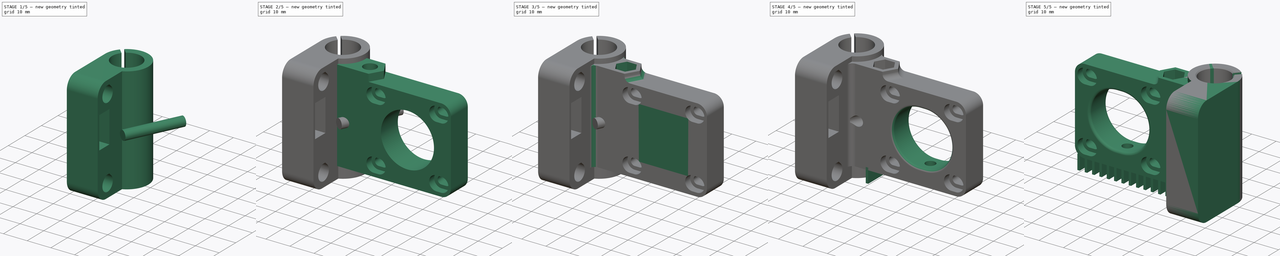
[diagram: build sequence overview — one tinted view per stage of 5, left to right]
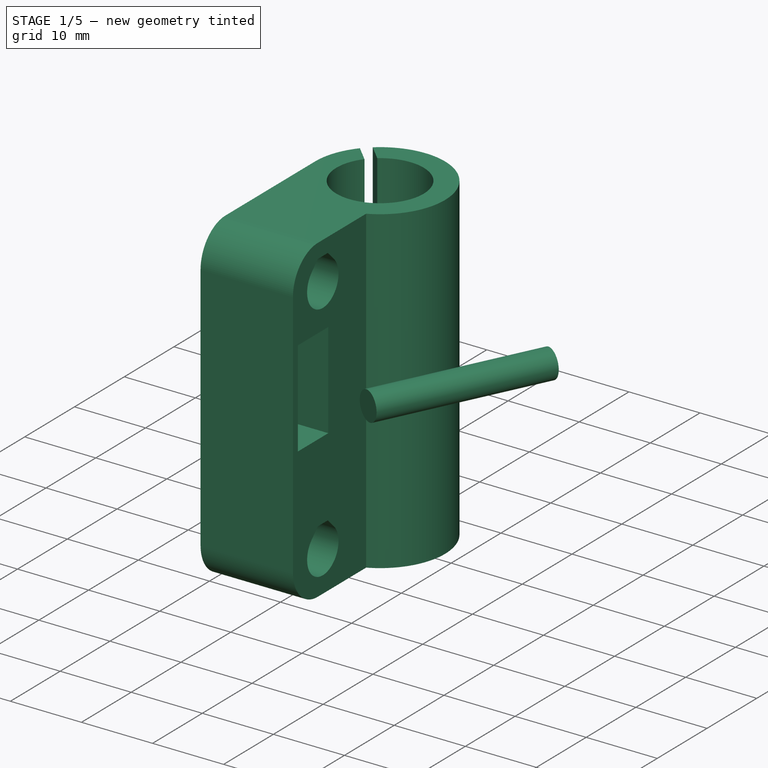
[diagram: stage 1 of 5 — iso view after this stage's code; geometry added in this stage tinted green]
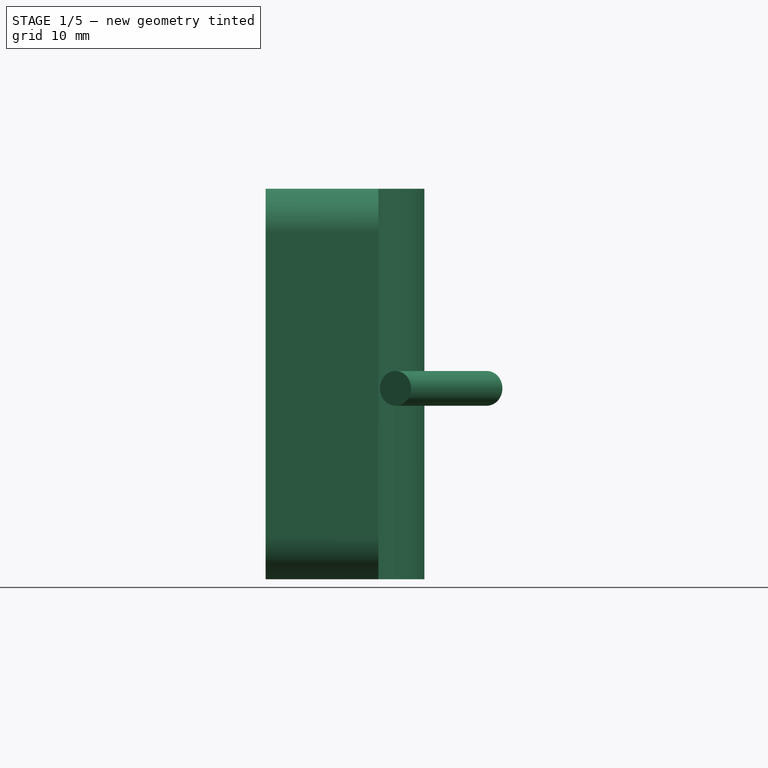
[diagram: stage 1 of 5 — front view after this stage's code; geometry added in this stage tinted green]
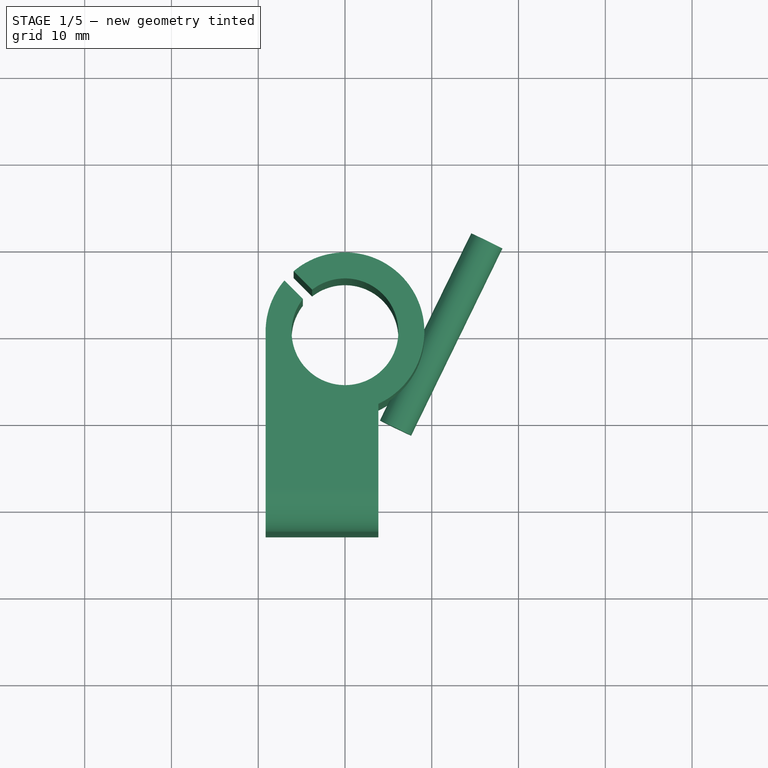
[diagram: stage 1 of 5 — top view after this stage's code; geometry added in this stage tinted green]
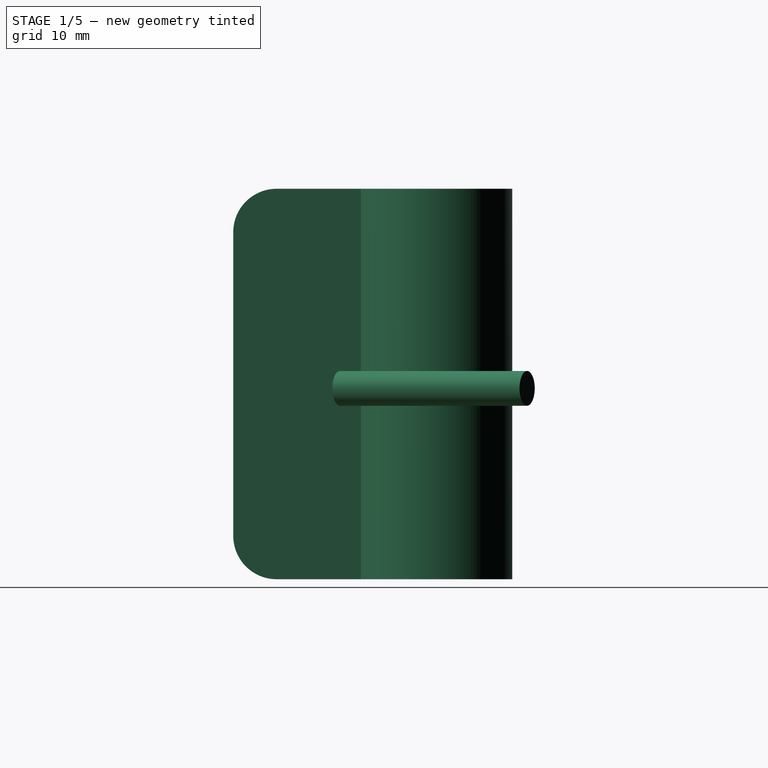
[diagram: stage 1 of 5 — right view after this stage's code; geometry added in this stage tinted green]
FCSTD DOCUMENT  (FreeCAD 0.16R6707 (Git))
Label: CarroMotorV2
License: CreativeCommons Attribution-ShareAlike
LicenseURL: http://creativecommons.org/licenses/by-sa/4.0/
objects: Sketcher::SketchObject×16, PartDesign::Pocket×11, PartDesign::Fillet×7, PartDesign::Pad×5, PartDesign::Chamfer×3, Part::Cylinder×2, Part::Cut×2, Part::MultiFuse×2, Part::Box×1, Part::FeaturePython×1, Part::Mirroring×1
note: 67 computed .brp shape members not serialized (recipe doc carries the construction recipe); baked Part::Feature solids carry a one-line shape summary decoded from their .brp

FEATURE [Sketcher::SketchObject] Sketch
  sketch-geometry (5):
    g0: LineSegment StartX=3.85 StartY=-8.3006 StartZ=0 EndX=3.85 EndY=-23 EndZ=0
    g1: LineSegment StartX=3.85 StartY=-23 StartZ=0 EndX=-9.15 EndY=-23 EndZ=0
    g2: LineSegment StartX=-9.15 StartY=-23 StartZ=0 EndX=-9.15 EndY=0 EndZ=0
    g3: ArcOfCircle CenterX=0 CenterY=0 CenterZ=0 NormalX=0 NormalY=0 NormalZ=1 Radius=9.15 StartAngle=5.14668 EndAngle=9.42478
    g4: Circle CenterX=0 CenterY=0 CenterZ=0 NormalX=0 NormalY=0 NormalZ=1 Radius=6.15
  constraints (14):
    c: Coincident(g0,g1)
    c: Coincident(g1,g2)
    c: Horizontal(g1)
    c: Vertical(g0)
    c: Vertical(g2)
    c: Coincident(g3,g-1)
    c: Coincident(g3,g2)
    c: Coincident(g3,g0)
    c: Radius(g3) = 9.15
    c: PointOnObject(g2,g-1)
    c: DistanceX(g1) = -13
    c: DistanceY(g2) = 23
    c: Coincident(g4,g-1)
    c: Radius(g4) = 6.15
FEATURE [PartDesign::Pad] Pad
  Length = 45
  Length2 = 100
  Sketch = -> Sketch
  Type = 0
FEATURE [Sketcher::SketchObject] Sketch001  label="SketchTensorRodamiento"
  Placement = pos=(0,0,45) rot=(0,0,1;0rad)
  Support = -> Pad [Face7]
  sketch-geometry (6):
    g0: LineSegment StartX=-8.2685 StartY=7.20784 StartZ=0 EndX=-4.02586 EndY=2.9652 EndZ=0
    g1: LineSegment StartX=-7.20784 StartY=8.2685 StartZ=0 EndX=-2.9652 EndY=4.02586 EndZ=0
    g2: LineSegment StartX=-8.2685 StartY=7.20784 StartZ=0 EndX=-7.20784 EndY=8.2685 EndZ=0
    g3: LineSegment StartX=-4.02586 StartY=2.9652 StartZ=0 EndX=-2.9652 EndY=4.02586 EndZ=0
    g4: LineSegment [constr] StartX=-4.02586 StartY=2.9652 StartZ=0 EndX=0 EndY=0 EndZ=0
    g5: LineSegment [constr] StartX=-2.9652 StartY=4.02586 StartZ=0 EndX=0 EndY=0 EndZ=0
  constraints (16):
    c: Coincident(g2,g0)
    c: Coincident(g2,g1)
    c: Coincident(g3,g0)
    c: Coincident(g3,g1)
    c: Parallel(g0,g1)
    c: Parallel(g2,g3)
    c: Perpendicular(g2,g0)
    c: Distance(g2) = 1.5
    c: Coincident(g4,g0)
    c: Coincident(g4,g-1)
    c: Coincident(g5,g1)
    c: Coincident(g5,g-1)
    c: Equal(g4,g5)
    c: Distance(g4) = 5
    c: Distance(g1) = 6
    c: Angle(g-1,g0) = 2.35619
FEATURE [PartDesign::Pocket] Pocket  label="VaciadoTensorRodamiento"
  Length = 5
  Sketch = -> Sketch001
  Type = 1
FEATURE [Sketcher::SketchObject] Sketch002  label="SketchBarraBaja"
  Placement = pos=(3.85,0,0) rot=(0.57735,0.57735,0.57735;2.0944rad)
  Support = -> Pocket [Face1]
  sketch-geometry (4):
    g0: ArcOfCircle CenterX=-17 CenterY=5.5 CenterZ=0 NormalX=0 NormalY=0 NormalZ=1 Radius=3.15 StartAngle=2.35619 EndAngle=7.06858
    g1: LineSegment StartX=-18 StartY=8.95477 StartZ=0 EndX=-16 EndY=8.95477 EndZ=0
    g2: LineSegment StartX=-19.2274 StartY=7.72739 StartZ=0 EndX=-18 EndY=8.95477 EndZ=0
    g3: LineSegment StartX=-14.7726 StartY=7.72738 StartZ=0 EndX=-16 EndY=8.95477 EndZ=0
  constraints (13):
    c: Horizontal(g1)
    c: Coincident(g2,g0)
    c: Coincident(g2,g1)
    c: Coincident(g3,g0)
    c: Coincident(g3,g1)
    c: Radius(g0) = 3.15
    c: Tangent(g0,g2)
    c: Tangent(g0,g3)
    c: DistanceX(g1) = 2
    c: Angle(g2,g3) = 1.5708
    c: Equal(g2,g3)
    c: DistanceY(g-1,g0) = 5.5
    c: DistanceX(g-1,g0) = -17
FEATURE [PartDesign::Pocket] Pocket001  label="VaciadoBarraBaja"
  Length = 11
  Sketch = -> Sketch002
  Type = 0
FEATURE [Sketcher::SketchObject] Sketch003  label="SketchBarraAlta"
  ExternalGeometry = -> [Pocket001]
  Placement = pos=(3.85,0,0) rot=(0.57735,0.57735,0.57735;2.0944rad)
  Support = -> Pocket001 [Face1]
  sketch-geometry (4):
    g0: ArcOfCircle CenterX=-17 CenterY=39.5 CenterZ=0 NormalX=0 NormalY=0 NormalZ=1 Radius=3.15 StartAngle=2.3562 EndAngle=7.06858
    g1: LineSegment StartX=-19.2274 StartY=41.7274 StartZ=0 EndX=-18 EndY=42.9548 EndZ=0
    g2: LineSegment StartX=-18 StartY=42.9548 StartZ=0 EndX=-16 EndY=42.9548 EndZ=0
    g3: LineSegment StartX=-16 StartY=42.9548 StartZ=0 EndX=-14.7726 EndY=41.7274 EndZ=0
  constraints (12):
    c: Tangent(g0,g1) = 1.5708
    c: Coincident(g1,g2)
    c: Horizontal(g2)
    c: Coincident(g2,g3)
    c: Coincident(g3,g0)
    c: Tangent(g0,g3)
    c: Equal(g1,g3)
    c: DistanceX(g2) = 2
    c: Radius(g0) = 3.15
    c: Angle(g1,g3) = 1.5708
    c: DistanceY(g-3,g0) = 34
    c: DistanceX(g-1,g0) = -17
FEATURE [PartDesign::Pocket] Pocket002  label="VaciadoBarraAlta"
  Length = 11
  Sketch = -> Sketch003
  Type = 0
FEATURE [PartDesign::Fillet] Fillet  label="BaseComun"
  Base = -> Pocket002 [Edge23,Edge16]
  Radius = 5
FEATURE [Sketcher::SketchObject] Sketch009
  Placement = pos=(3.85,0,0) rot=(0.57735,0.57735,0.57735;2.0944rad)
  Support = -> Fillet [Face1]
  sketch-geometry (4):
    g0: LineSegment StartX=-22.02 StartY=33.5 StartZ=0 EndX=-15.9 EndY=33.5 EndZ=0
    g1: LineSegment StartX=-15.9 StartY=20 StartZ=0 EndX=-22.02 EndY=20 EndZ=0
    g2: LineSegment StartX=-22.02 StartY=20 StartZ=0 EndX=-22.02 EndY=33.5 EndZ=0
    g3: LineSegment StartX=-15.9 StartY=20 StartZ=0 EndX=-15.9 EndY=33.5 EndZ=0
  constraints (12):
    c: Coincident(g1,g2)
    c: Coincident(g2,g0)
    c: Horizontal(g0)
    c: Horizontal(g1)
    c: Vertical(g2)
    c: DistanceY(g2) = 13.5
    c: DistanceX(g0) = 6.12
    c: DistanceY(g-1,g1) = 20
    c: DistanceX(g-1,g1) = -15.9
    c: Coincident(g3,g0)
    c: Vertical(g3)
    c: Coincident(g3,g1)
FEATURE [PartDesign::Pocket] Pocket006
  Length = 8
  Sketch = -> Sketch009
  Type = 0
FEATURE [Part::Cylinder] Cylinder001  label="Cilindro"
  Angle = 360
  Height = 24
  Placement = pos=(16.3443,10.8662,22) rot=(0.950615,-0.219467,-0.219467;1.62142rad)
  Radius = 2
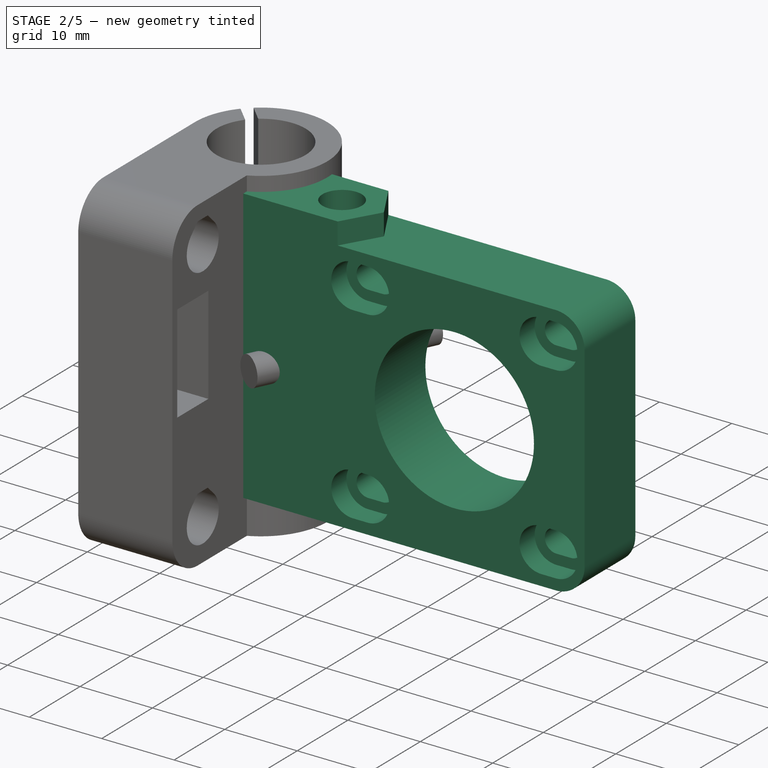
[diagram: stage 2 of 5 — iso view after this stage's code; geometry added in this stage tinted green]
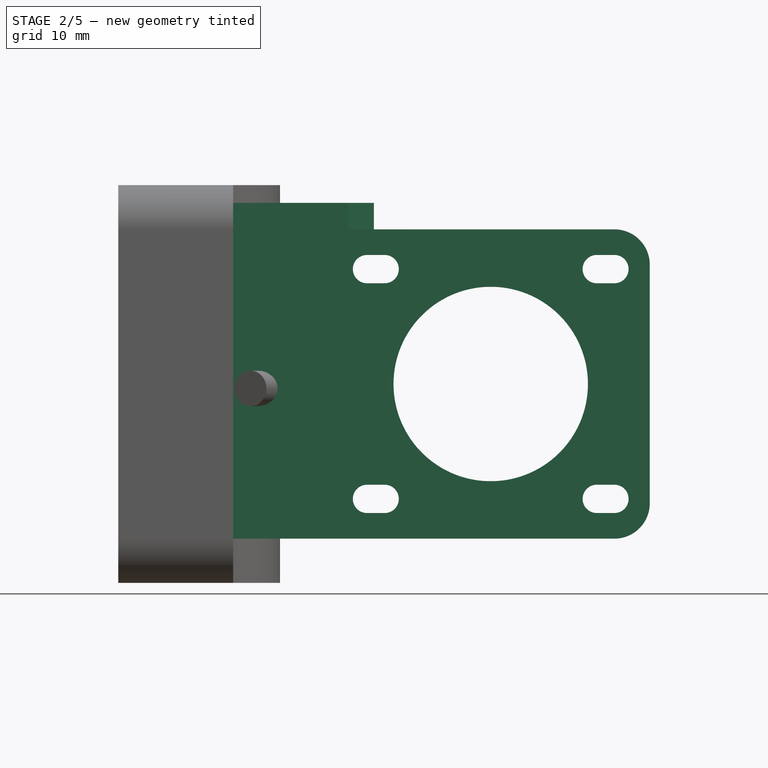
[diagram: stage 2 of 5 — front view after this stage's code; geometry added in this stage tinted green]
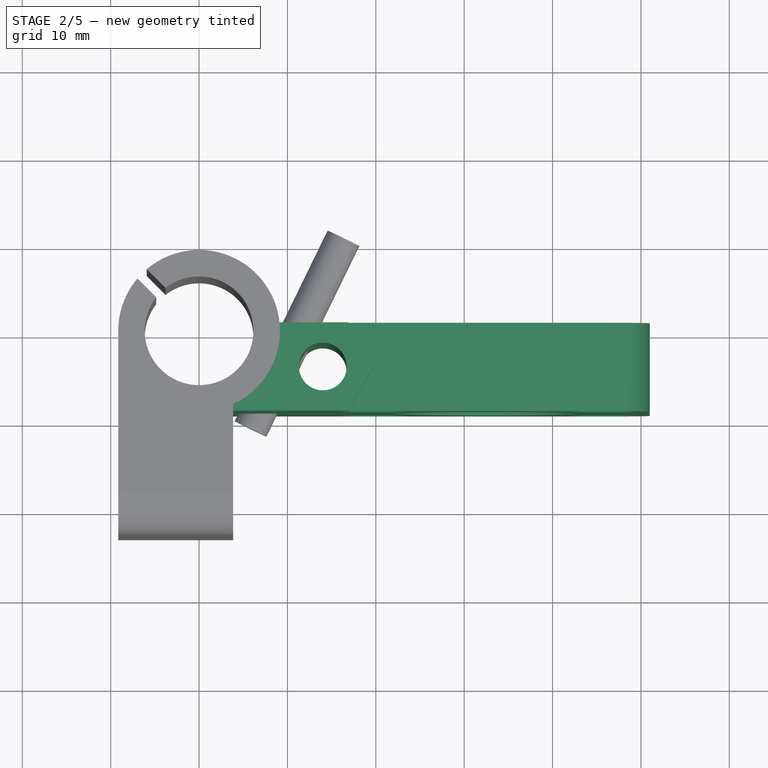
[diagram: stage 2 of 5 — top view after this stage's code; geometry added in this stage tinted green]
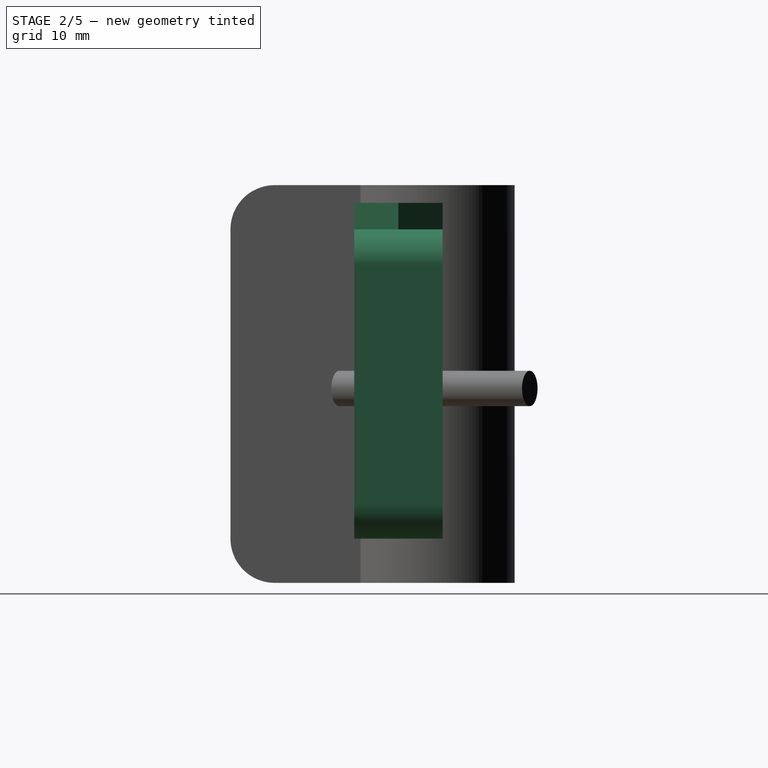
[diagram: stage 2 of 5 — right view after this stage's code; geometry added in this stage tinted green]
FEATURE [Sketcher::SketchObject] Sketch004  label="SketchBaseMotor"
  Placement = pos=(0,0,22.5) rot=(0,0,1;0rad)
  sketch-geometry (5):
    g0: ArcOfCircle CenterX=0 CenterY=0 CenterZ=0 NormalX=0 NormalY=0 NormalZ=1 Radius=8 StartAngle=4.96507 EndAngle=6.40851
    g1: LineSegment StartX=7.93725 StartY=1 StartZ=0 EndX=51 EndY=1 EndZ=0
    g2: LineSegment StartX=51 StartY=1 StartZ=0 EndX=51 EndY=-9 EndZ=0
    g3: LineSegment StartX=51 StartY=-9 StartZ=0 EndX=2 EndY=-9 EndZ=0
    g4: LineSegment StartX=2 StartY=-9 StartZ=0 EndX=2 EndY=-7.74597 EndZ=0
  constraints (15):
    c: Coincident(g0,g-1)
    c: Coincident(g0,g1)
    c: Coincident(g1,g2)
    c: Vertical(g2)
    c: Coincident(g2,g3)
    c: Horizontal(g3)
    c: Coincident(g3,g4)
    c: Coincident(g4,g0)
    c: Vertical(g4)
    c: Horizontal(g1)
    c: DistanceX(g-1,g1) = 51
    c: DistanceY(g2) = -10
    c: Radius(g0) = 8
    c: DistanceY(g-1,g3) = -9
    c: DistanceX(g-1,g3) = 2
FEATURE [PartDesign::Pad] Pad001  label="BaseMotor"
  Length = 35
  Length2 = 100
  Midplane = true
  Placement = pos=(0,0,22.5) rot=(0,0,1;0rad)
  Sketch = -> Sketch004
  Type = 0
FEATURE [Sketcher::SketchObject] Sketch005  label="huecosMotor"
  Placement = pos=(0,-9,22.5) rot=(1,0,0;1.5708rad)
  Support = -> Pad001 [Face4]
  sketch-geometry (21):
    g0: Circle CenterX=33 CenterY=0 CenterZ=0 NormalX=0 NormalY=0 NormalZ=1 Radius=11
    g1: LineSegment [constr] StartX=19 StartY=13 StartZ=0 EndX=45 EndY=13 EndZ=0
    g2: LineSegment [constr] StartX=45 StartY=13 StartZ=0 EndX=45 EndY=-13 EndZ=0
    g3: LineSegment [constr] StartX=45 StartY=-13 StartZ=0 EndX=19 EndY=-13 EndZ=0
    g4: LineSegment [constr] StartX=19 StartY=-13 StartZ=0 EndX=19 EndY=13 EndZ=0
    g5: ArcOfCircle CenterX=19 CenterY=13 CenterZ=0 NormalX=0 NormalY=0 NormalZ=1 Radius=1.6 StartAngle=1.5708 EndAngle=4.71239
    g6: ArcOfCircle CenterX=21 CenterY=13 CenterZ=0 NormalX=0 NormalY=0 NormalZ=1 Radius=1.6 StartAngle=4.71239 EndAngle=7.85398
    g7: LineSegment StartX=19 StartY=11.4 StartZ=0 EndX=21 EndY=11.4 EndZ=0
    g8: LineSegment StartX=19 StartY=14.6 StartZ=0 EndX=21 EndY=14.6 EndZ=0
    g9: ArcOfCircle CenterX=45 CenterY=13 CenterZ=0 NormalX=0 NormalY=0 NormalZ=1 Radius=1.6 StartAngle=1.5708 EndAngle=4.71239
    g10: ArcOfCircle CenterX=47 CenterY=13 CenterZ=0 NormalX=0 NormalY=0 NormalZ=1 Radius=1.6 StartAngle=4.71239 EndAngle=7.85398
    g11: LineSegment StartX=45 StartY=11.4 StartZ=0 EndX=47 EndY=11.4 EndZ=0
    g12: LineSegment StartX=45 StartY=14.6 StartZ=0 EndX=47 EndY=14.6 EndZ=0
    g13: ArcOfCircle CenterX=19 CenterY=-13 CenterZ=0 NormalX=0 NormalY=0 NormalZ=1 Radius=1.6 StartAngle=1.5708 EndAngle=4.71239
    g14: ArcOfCircle CenterX=21 CenterY=-13 CenterZ=0 NormalX=0 NormalY=0 NormalZ=1 Radius=1.6 StartAngle=4.71239 EndAngle=7.85398
    g15: LineSegment StartX=19 StartY=-14.6 StartZ=0 EndX=21 EndY=-14.6 EndZ=0
    g16: LineSegment StartX=19 StartY=-11.4 StartZ=0 EndX=21 EndY=-11.4 EndZ=0
    g17: ArcOfCircle CenterX=45 CenterY=-13 CenterZ=0 NormalX=0 NormalY=0 NormalZ=1 Radius=1.6 StartAngle=1.5708 EndAngle=4.71239
    g18: ArcOfCircle CenterX=47 CenterY=-13 CenterZ=0 NormalX=0 NormalY=0 NormalZ=1 Radius=1.6 StartAngle=4.71239 EndAngle=7.85398
    g19: LineSegment StartX=45 StartY=-14.6 StartZ=0 EndX=47 EndY=-14.6 EndZ=0
    g20: LineSegment StartX=45 StartY=-11.4 StartZ=0 EndX=47 EndY=-11.4 EndZ=0
  constraints (51):
    c: PointOnObject(g0,g-1)
    c: DistanceX(g-1,g0) = 33
    c: Radius(g0) = 11
    c: Coincident(g1,g2)
    c: Coincident(g2,g3)
    c: Coincident(g3,g4)
    c: Coincident(g4,g1)
    c: Horizontal(g1)
    c: Horizontal(g3)
    c: Vertical(g2)
    c: Vertical(g4)
    c: Equal(g1,g4)
    c: Symmetric(g3,g1,g-1)
    c: DistanceX(g1) = 26
    c: DistanceX(g0,g1) = -14
    c: Tangent(g5,g8) = 1.5708
    c: Tangent(g5,g7) = -1.5708
    c: Tangent(g7,g6) = -1.5708
    c: Tangent(g8,g6) = 1.5708
    c: Horizontal(g7)
    c: Equal(g5,g6)
    c: Coincident(g5,g1)
    c: Tangent(g9,g12) = 1.5708
    c: Tangent(g9,g11) = -1.5708
    c: Tangent(g11,g10) = -1.5708
    c: Tangent(g12,g10) = 1.5708
    c: Horizontal(g11)
    c: Equal(g9,g10)
    c: Coincident(g9,g1)
    c: Tangent(g13,g16) = 1.5708
    c: Tangent(g13,g15) = -1.5708
    c: Tangent(g15,g14) = -1.5708
    c: Tangent(g16,g14) = 1.5708
    c: Horizontal(g15)
    c: Equal(g13,g14)
    c: Coincident(g13,g3)
    c: Tangent(g17,g20) = 1.5708
    c: Tangent(g17,g19) = -1.5708
    c: Tangent(g19,g18) = -1.5708
    c: Tangent(g20,g18) = 1.5708
    c: Horizontal(g19)
    c: Equal(g17,g18)
    c: Coincident(g17,g2)
    c: DistanceX(g8) = 2
    c: Radius(g6) = 1.6
    c: Equal(g8,g12)
    c: Equal(g12,g20)
    c: Equal(g20,g16)
    c: Equal(g6,g10)
    c: Equal(g10,g18)
    c: Equal(g18,g14)
FEATURE [PartDesign::Pocket] Pocket003  label="VaciadoTornilllosMotor"
  Length = 10
  Placement = pos=(0,0,22.5) rot=(0,0,1;0rad)
  Sketch = -> Sketch005
  Type = 1
FEATURE [Part::Cylinder] Cylinder  label="tornillo"
  Angle = 360
  Height = 60
  Placement = pos=(14,-4,0) rot=(0,0,1;0rad)
  Radius = 2.7
FEATURE [Sketcher::SketchObject] Sketch006
  ExternalGeometry = -> [Pocket003]
  Placement = pos=(0,-9,22.5) rot=(1,0,0;1.5708rad)
  Support = -> Pocket003 [Face6]
  sketch-geometry (16):
    g0: ArcOfCircle CenterX=19 CenterY=13 CenterZ=0 NormalX=0 NormalY=0 NormalZ=1 Radius=3 StartAngle=1.5708 EndAngle=4.71239
    g1: ArcOfCircle CenterX=21 CenterY=13 CenterZ=0 NormalX=0 NormalY=0 NormalZ=1 Radius=3 StartAngle=4.71239 EndAngle=7.85398
    g2: LineSegment StartX=19 StartY=10 StartZ=0 EndX=21 EndY=10 EndZ=0
    g3: LineSegment StartX=19 StartY=16 StartZ=0 EndX=21 EndY=16 EndZ=0
    g4: ArcOfCircle CenterX=45 CenterY=13 CenterZ=0 NormalX=0 NormalY=0 NormalZ=1 Radius=3 StartAngle=1.5708 EndAngle=4.71239
    g5: ArcOfCircle CenterX=47 CenterY=13 CenterZ=0 NormalX=0 NormalY=0 NormalZ=1 Radius=3 StartAngle=4.71239 EndAngle=7.85398
    g6: LineSegment StartX=45 StartY=10 StartZ=0 EndX=47 EndY=10 EndZ=0
    g7: LineSegment StartX=45 StartY=16 StartZ=0 EndX=47 EndY=16 EndZ=0
    g8: ArcOfCircle CenterX=19 CenterY=-13 CenterZ=0 NormalX=0 NormalY=0 NormalZ=1 Radius=3 StartAngle=1.5708 EndAngle=4.71239
    g9: ArcOfCircle CenterX=21 CenterY=-13 CenterZ=0 NormalX=0 NormalY=0 NormalZ=1 Radius=3 StartAngle=4.71239 EndAngle=7.85398
    g10: LineSegment StartX=19 StartY=-16 StartZ=0 EndX=21 EndY=-16 EndZ=0
    g11: LineSegment StartX=19 StartY=-10 StartZ=0 EndX=21 EndY=-10 EndZ=0
    g12: ArcOfCircle CenterX=45 CenterY=-13 CenterZ=0 NormalX=0 NormalY=0 NormalZ=1 Radius=3 StartAngle=1.5708 EndAngle=4.71239
    g13: ArcOfCircle CenterX=47 CenterY=-13 CenterZ=0 NormalX=0 NormalY=0 NormalZ=1 Radius=3 StartAngle=4.71239 EndAngle=7.85398
    g14: LineSegment StartX=45 StartY=-16 StartZ=0 EndX=47 EndY=-16 EndZ=0
    g15: LineSegment StartX=45 StartY=-10 StartZ=0 EndX=47 EndY=-10 EndZ=0
  constraints (36):
    c: Tangent(g0,g3) = 1.5708
    c: Tangent(g0,g2) = -1.5708
    c: Tangent(g2,g1) = -1.5708
    c: Tangent(g3,g1) = 1.5708
    c: Horizontal(g2)
    c: Equal(g0,g1)
    c: Coincident(g0,g-3)
    c: Tangent(g4,g7) = 1.5708
    c: Tangent(g4,g6) = -1.5708
    c: Tangent(g6,g5) = -1.5708
    c: Tangent(g7,g5) = 1.5708
    c: Horizontal(g6)
    c: Equal(g4,g5)
    c: Coincident(g4,g-4)
    c: Tangent(g8,g11) = 1.5708
    c: Tangent(g8,g10) = -1.5708
    c: Tangent(g10,g9) = -1.5708
    c: Tangent(g11,g9) = 1.5708
    c: Horizontal(g10)
    c: Equal(g8,g9)
    c: Coincident(g8,g-6)
    c: Tangent(g12,g15) = 1.5708
    c: Tangent(g12,g14) = -1.5708
    c: Tangent(g14,g13) = -1.5708
    c: Tangent(g15,g13) = 1.5708
    c: Horizontal(g14)
    c: Equal(g12,g13)
    c: Coincident(g12,g-5)
    c: Equal(g12,g8)
    c: Equal(g8,g0)
    c: Equal(g0,g4)
    c: Radius(g0) = 3
    c: Equal(g3,g11)
    c: Equal(g11,g15)
    c: Equal(g15,g7)
    c: DistanceX(g3) = 2
FEATURE [PartDesign::Pocket] Pocket004
  Length = 3
  Placement = pos=(0,0,22.5) rot=(0,0,1;0rad)
  Sketch = -> Sketch006
  Type = 0
FEATURE [Part::Cut] Cut
  Base = -> Pocket004
  Tool = -> Cylinder
FEATURE [PartDesign::Fillet] Fillet001
  Base = -> Cut [Edge32,Edge29]
  Radius = 4
FEATURE [Sketcher::SketchObject] Sketch007
  ExternalGeometry = -> [Fillet001]
  Placement = pos=(0,0,40) rot=(0,0,1;0rad)
  Support = -> Fillet001 [Face6]
  sketch-geometry (12):
    g0: LineSegment StartX=16.8868 StartY=-9 StartZ=0 EndX=19.7735 EndY=-4 EndZ=0
    g1: LineSegment StartX=19.7735 StartY=-4 StartZ=0 EndX=16.8868 EndY=1 EndZ=0
    g2: LineSegment StartX=16.8868 StartY=1 StartZ=0 EndX=11.1132 EndY=1 EndZ=0
    g3: LineSegment [constr] StartX=11.1132 StartY=1 StartZ=0 EndX=8.2265 EndY=-4 EndZ=0
    g4: LineSegment [constr] StartX=8.2265 StartY=-4 StartZ=0 EndX=11.1132 EndY=-9 EndZ=0
    g5: LineSegment StartX=11.1132 StartY=-9 StartZ=0 EndX=16.8868 EndY=-9 EndZ=0
    g6: Circle [constr] CenterX=14 CenterY=-4 CenterZ=0 NormalX=0 NormalY=0 NormalZ=1 Radius=5.7735
    g7: Circle CenterX=14 CenterY=-4 CenterZ=0 NormalX=0 NormalY=0 NormalZ=1 Radius=2.7
    g8: LineSegment StartX=11.1132 StartY=1 StartZ=0 EndX=8.44097 EndY=1 EndZ=0
    g9: ArcOfCircle CenterX=0 CenterY=0 CenterZ=0 NormalX=0 NormalY=0 NormalZ=1 Radius=8.5 StartAngle=5.15145 EndAngle=6.40111
    g10: LineSegment StartX=3.61325 StartY=-7.69379 StartZ=0 EndX=3.61325 EndY=-9 EndZ=0
    g11: LineSegment StartX=11.1132 StartY=-9 StartZ=0 EndX=3.61325 EndY=-9 EndZ=0
  constraints (30):
    c: Coincident(g0,g1)
    c: Coincident(g1,g2)
    c: Coincident(g2,g3)
    c: Coincident(g3,g4)
    c: Coincident(g4,g5)
    c: Coincident(g5,g0)
    c: Equal(g0, g1-g5) x5
    c: PointOnObject(g0,g6)
    c: PointOnObject(g1,g6)
    c: PointOnObject(g2,g6)
    c: PointOnObject(g3,g6)
    c: PointOnObject(g4,g6)
    c: PointOnObject(g5,g6)
    c: Coincident(g3,g-3)
    c: Horizontal(g2)
    c: DistanceY(g1,g0) = -10
    c: Coincident(g6,g-3)
    c: Coincident(g7,g6)
    c: Radius(g7) = 2.7
    c: Coincident(g8,g2)
    c: Horizontal(g8)
    c: Coincident(g9,g-1)
    c: Coincident(g9,g8)
    c: Radius(g9) = 8.5
    c: Coincident(g10,g9)
    c: Vertical(g10)
    c: Coincident(g11,g4)
    c: Coincident(g11,g10)
    c: Horizontal(g11)
    c: DistanceX(g11) = -7.5
FEATURE [PartDesign::Pad] Pad002
  Length = 3
  Length2 = 100
  Sketch = -> Sketch007
  Type = 0
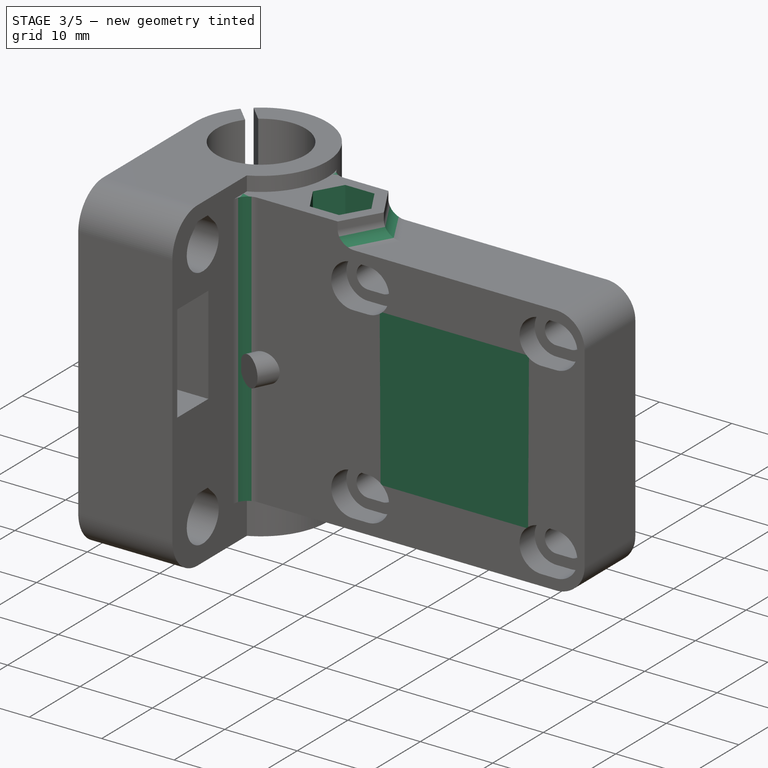
[diagram: stage 3 of 5 — iso view after this stage's code; geometry added in this stage tinted green]
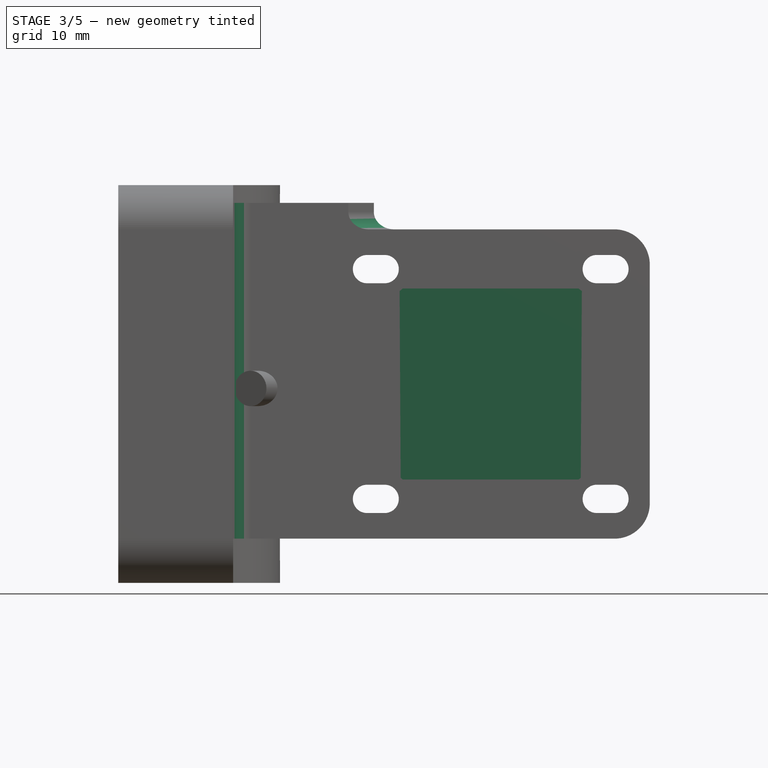
[diagram: stage 3 of 5 — front view after this stage's code; geometry added in this stage tinted green]
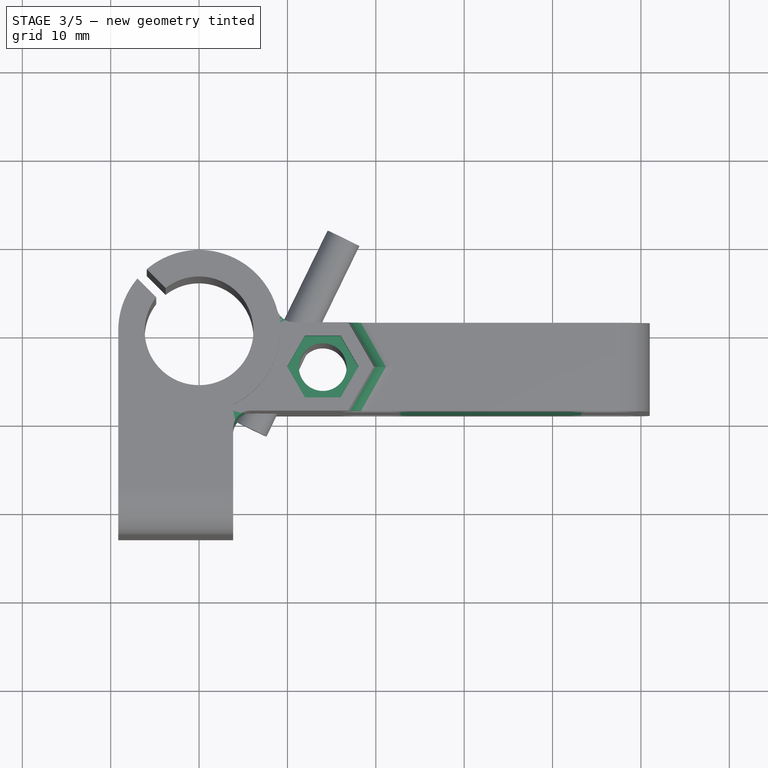
[diagram: stage 3 of 5 — top view after this stage's code; geometry added in this stage tinted green]
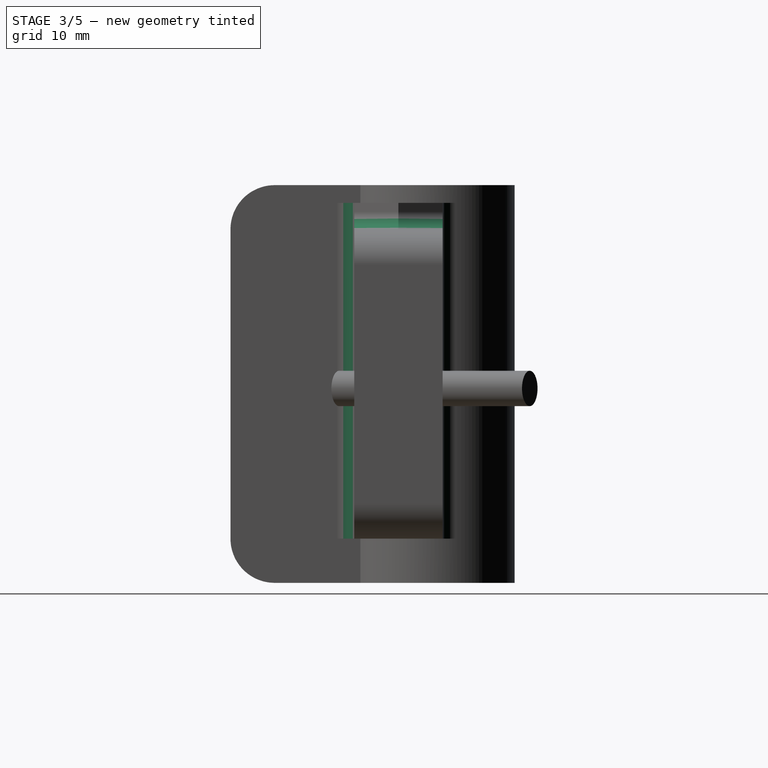
[diagram: stage 3 of 5 — right view after this stage's code; geometry added in this stage tinted green]
FEATURE [PartDesign::Fillet] Fillet002
  Base = -> Pad002 [Edge11,Edge13]
  Radius = 2
FEATURE [Sketcher::SketchObject] Sketch008
  ExternalGeometry = -> [Fillet002]
  Placement = pos=(0,0,43) rot=(0,0,1;0rad)
  Support = -> Fillet002 [Face4]
  sketch-geometry (7):
    g0: LineSegment StartX=16.0207 StartY=-7.5 StartZ=0 EndX=18.0415 EndY=-4 EndZ=0
    g1: LineSegment StartX=18.0415 StartY=-4 StartZ=0 EndX=16.0207 EndY=-0.5 EndZ=0
    g2: LineSegment StartX=16.0207 StartY=-0.5 StartZ=0 EndX=11.9793 EndY=-0.5 EndZ=0
    g3: LineSegment StartX=11.9793 StartY=-0.5 StartZ=0 EndX=9.95855 EndY=-4 EndZ=0
    g4: LineSegment StartX=9.95855 StartY=-4 StartZ=0 EndX=11.9793 EndY=-7.5 EndZ=0
    g5: LineSegment StartX=11.9793 StartY=-7.5 StartZ=0 EndX=16.0207 EndY=-7.5 EndZ=0
    g6: Circle [constr] CenterX=14 CenterY=-4 CenterZ=0 NormalX=0 NormalY=0 NormalZ=1 Radius=4.04145
  constraints (16):
    c: Coincident(g0,g1)
    c: Coincident(g1,g2)
    c: Coincident(g2,g3)
    c: Coincident(g3,g4)
    c: Coincident(g4,g5)
    c: Coincident(g5,g0)
    c: Equal(g0, g1-g5) x5
    c: PointOnObject(g0,g6)
    c: PointOnObject(g1,g6)
    c: PointOnObject(g2,g6)
    c: PointOnObject(g3,g6)
    c: PointOnObject(g4,g6)
    c: PointOnObject(g5,g6)
    c: Horizontal(g2)
    c: DistanceY(g0,g1) = 7
    c: Coincident(g6,g-3)
FEATURE [PartDesign::Pocket] Pocket005
  Length = 4
  Sketch = -> Sketch008
  Type = 0
FEATURE [PartDesign::Fillet] Fillet003
  Base = -> Pocket005 [Edge69,Edge16]
  Radius = 1
FEATURE [Part::MultiFuse] Fusion
  Shapes = -> [Fillet003,Pocket006]
FEATURE [PartDesign::Fillet] Fillet004
  Base = -> Fusion [Edge47]
  Radius = 2
FEATURE [PartDesign::Fillet] Fillet005
  Base = -> Fillet004 [Edge31]
  Radius = 2
FEATURE [Sketcher::SketchObject] Sketch010
  ExternalGeometry = -> [Fillet005]
  Placement = pos=(0,-9,0) rot=(1,0,0;1.5708rad)
  Support = -> Fillet005 [Face2]
  sketch-geometry (1):
    g0: Circle CenterX=33 CenterY=22.5 CenterZ=0 NormalX=0 NormalY=0 NormalZ=1 Radius=13
  constraints (2):
    c: Coincident(g0,g-3)
    c: Radius(g0) = 13
FEATURE [PartDesign::Pad] Pad003
  Length = 10
  Length2 = 100
  Reversed = true
  Sketch = -> Sketch010
  Type = 0
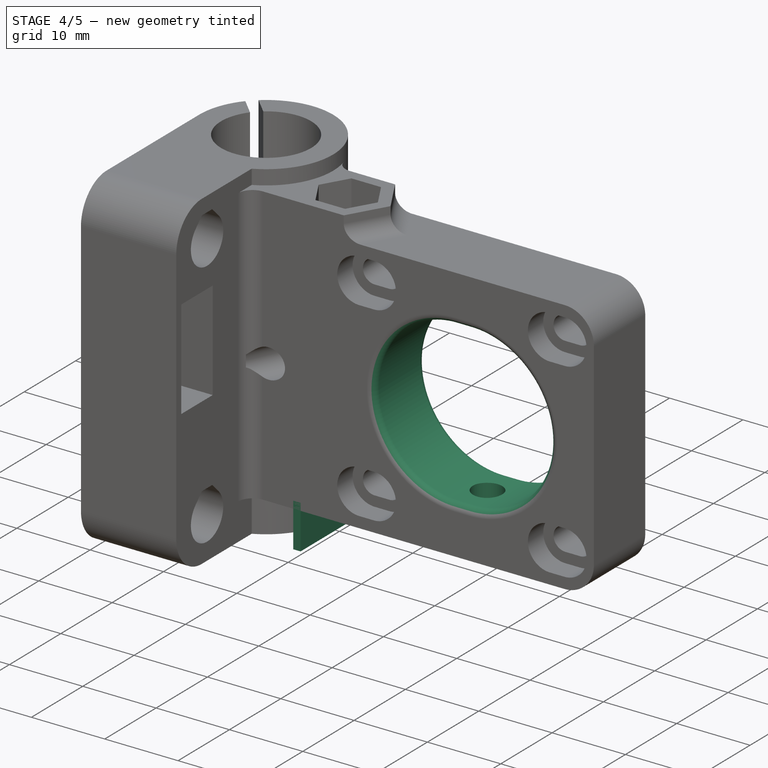
[diagram: stage 4 of 5 — iso view after this stage's code; geometry added in this stage tinted green]
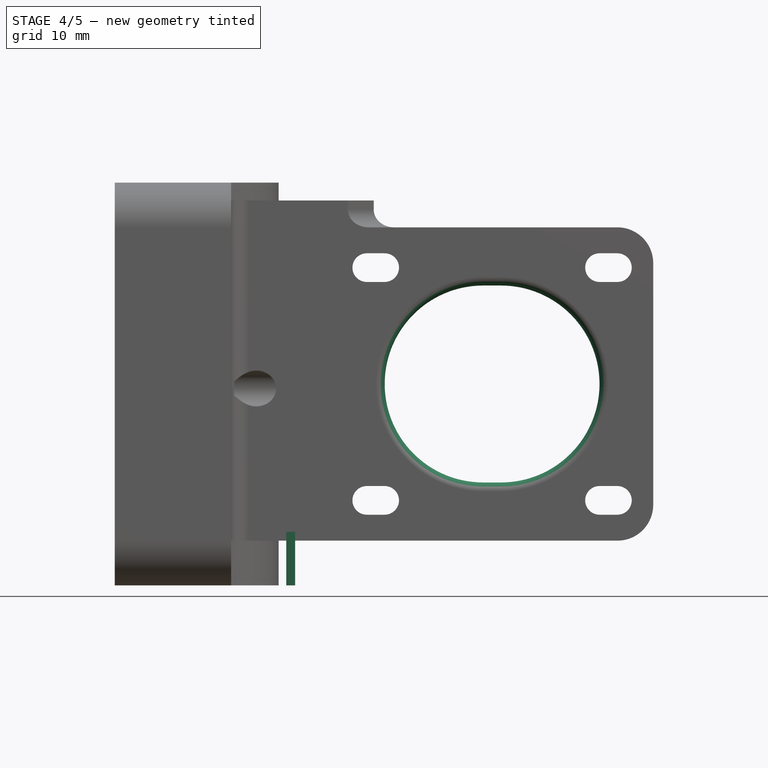
[diagram: stage 4 of 5 — front view after this stage's code; geometry added in this stage tinted green]
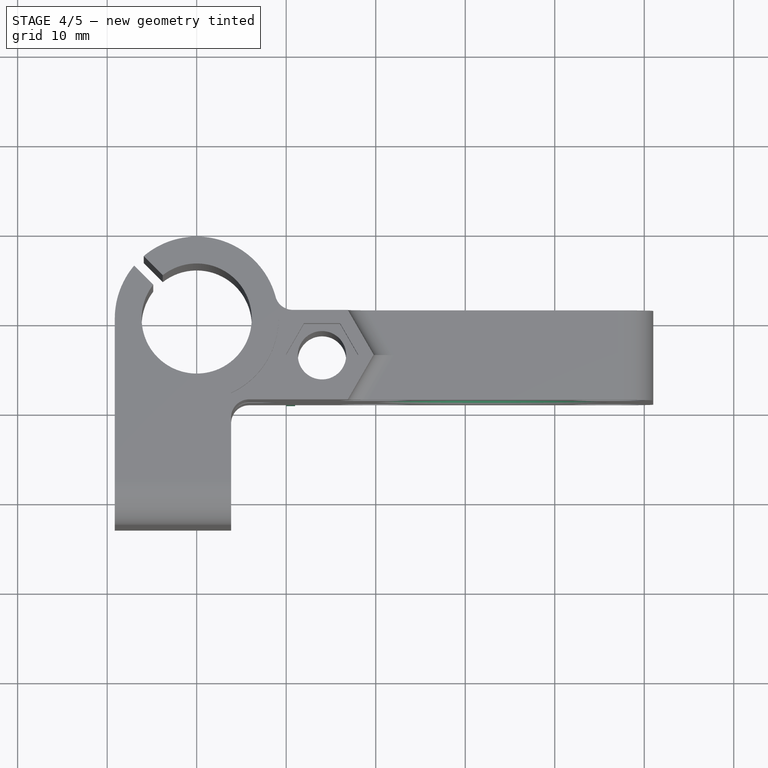
[diagram: stage 4 of 5 — top view after this stage's code; geometry added in this stage tinted green]
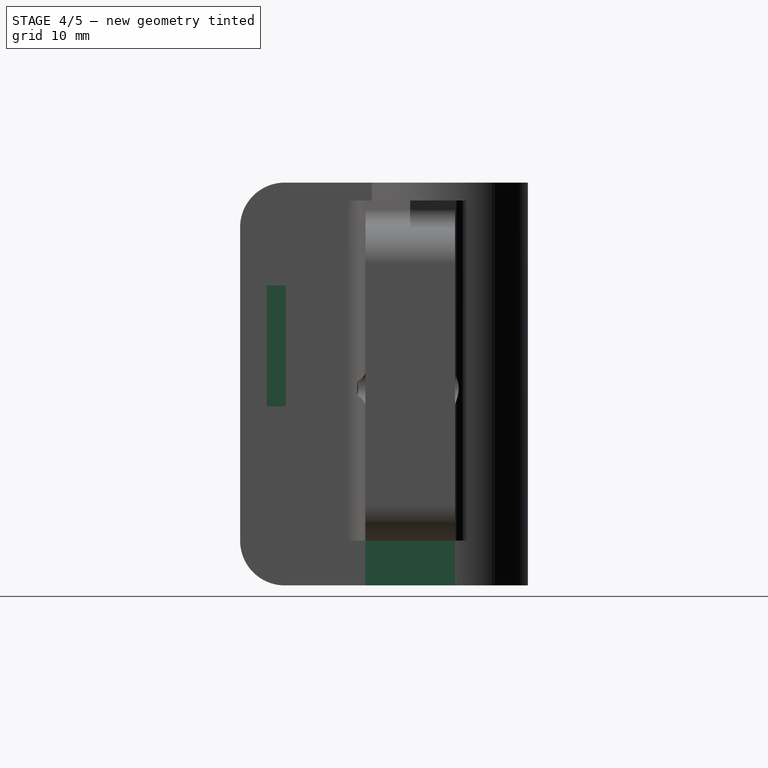
[diagram: stage 4 of 5 — right view after this stage's code; geometry added in this stage tinted green]
FEATURE [Part::Box] Box  label="soportesimple"
  Height = 6
  Length = 1
  Placement = pos=(10,-9,0) rot=(0,0,1;0rad)
  Width = 10
FEATURE [Sketcher::SketchObject] Sketch011
  Placement = pos=(0,1,0) rot=(0,0.707107,0.707107;3.14159rad)
  Support = -> Pad003 [Face85]
  sketch-geometry (1):
    g0: Circle CenterX=-33 CenterY=22.5 CenterZ=0 NormalX=0 NormalY=0 NormalZ=1 Radius=13
  constraints (3):
    c: DistanceX(g-1,g0) = -33
    c: DistanceY(g-1,g0) = 22.5
    c: Radius(g0) = 13
FEATURE [PartDesign::Pad] Pad004
  Length = 5
  Length2 = 100
  Reversed = true
  Sketch = -> Sketch011
  Type = 0
FEATURE [Sketcher::SketchObject] Sketch012
  Placement = pos=(0,1,0) rot=(0,0.707107,0.707107;3.14159rad)
  Support = -> Pad004 [Face85]
  sketch-geometry (4):
    g0: ArcOfCircle CenterX=-34 CenterY=22.5 CenterZ=0 NormalX=0 NormalY=0 NormalZ=1 Radius=11 StartAngle=1.5708 EndAngle=4.71239
    g1: ArcOfCircle CenterX=-32 CenterY=22.5 CenterZ=0 NormalX=0 NormalY=0 NormalZ=1 Radius=11 StartAngle=4.71239 EndAngle=7.85398
    g2: LineSegment StartX=-34 StartY=11.5 StartZ=0 EndX=-32 EndY=11.5 EndZ=0
    g3: LineSegment StartX=-34 StartY=33.5 StartZ=0 EndX=-32 EndY=33.5 EndZ=0
  constraints (10):
    c: Tangent(g0,g3) = 1.5708
    c: Tangent(g0,g2) = -1.5708
    c: Tangent(g2,g1) = -1.5708
    c: Tangent(g3,g1) = 1.5708
    c: Horizontal(g2)
    c: Equal(g0,g1)
    c: DistanceY(g-1,g1) = 22.5
    c: DistanceX(g-1,g1) = -32
    c: DistanceX(g3) = 2
    c: Radius(g1) = 11
FEATURE [PartDesign::Pocket] Pocket007
  Length = 5
  Sketch = -> Sketch012
  Type = 1
FEATURE [PartDesign::Fillet] Fillet006
  Base = -> Pocket007 [Edge98,Edge95,Edge32,Edge34,Edge96,Edge31,Edge99,Edge97,Edge33]
  Radius = 1
FEATURE [Sketcher::SketchObject] Sketch013
  Placement = pos=(0,0,5) rot=(1,0,0;3.14159rad)
  Support = -> Fillet006 [Face8]
  sketch-geometry (1):
    g0: Circle CenterX=33 CenterY=4 CenterZ=0 NormalX=0 NormalY=0 NormalZ=1 Radius=2
  constraints (3):
    c: DistanceX(g-1,g0) = 33
    c: DistanceY(g-1,g0) = 4
    c: Radius(g0) = 2
FEATURE [PartDesign::Pocket] Pocket008
  Length = 10
  Sketch = -> Sketch013
  Type = 0
FEATURE [Sketcher::SketchObject] Sketch014
  ExternalGeometry = -> [Pocket008]
  Placement = pos=(-4.15,0,0) rot=(0.57735,0.57735,0.57735;2.0944rad)
  Support = -> Pocket008 [Face99]
  sketch-geometry (4):
    g0: LineSegment StartX=-20.02 StartY=20 StartZ=0 EndX=-17.9 EndY=20 EndZ=0
    g1: LineSegment StartX=-17.9 StartY=20 StartZ=0 EndX=-17.9 EndY=33.5 EndZ=0
    g2: LineSegment StartX=-17.9 StartY=33.5 StartZ=0 EndX=-20.02 EndY=33.5 EndZ=0
    g3: LineSegment StartX=-20.02 StartY=33.5 StartZ=0 EndX=-20.02 EndY=20 EndZ=0
  constraints (12):
    c: Coincident(g0,g1)
    c: Coincident(g1,g2)
    c: Coincident(g2,g3)
    c: Coincident(g3,g0)
    c: Horizontal(g0)
    c: Horizontal(g2)
    c: Vertical(g1)
    c: Vertical(g3)
    c: PointOnObject(g0,g-5)
    c: PointOnObject(g1,g-4)
    c: DistanceX(g0,g-5) = 2
    c: DistanceX(g-5,g0) = 2
FEATURE [PartDesign::Pocket] Pocket009
  Length = 3
  Sketch = -> Sketch014
  Type = 0
FEATURE [Part::Cut] Cut001
  Base = -> Pocket009
  Tool = -> Cylinder001
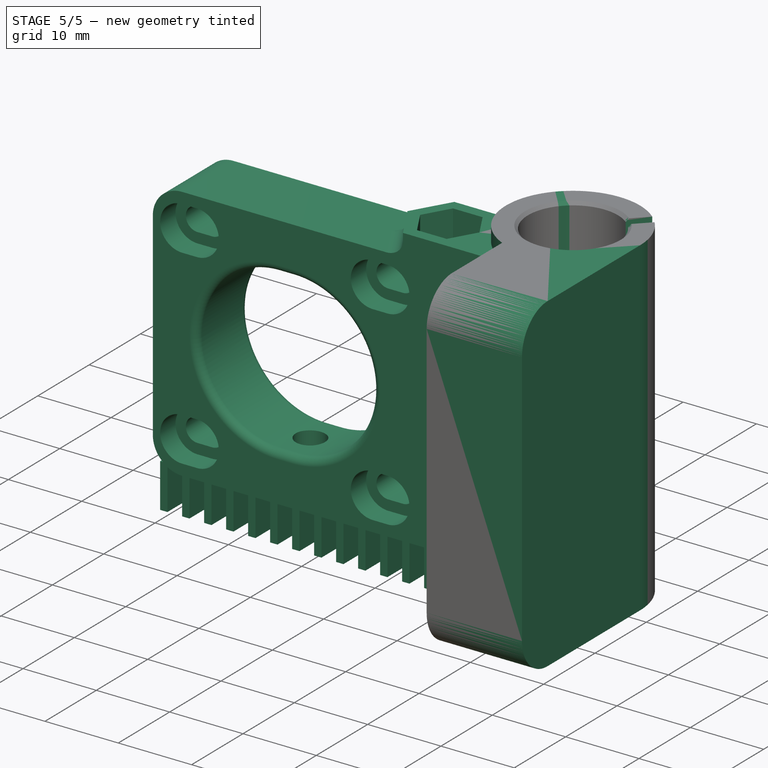
[diagram: stage 5 of 5 — iso view after this stage's code; geometry added in this stage tinted green]
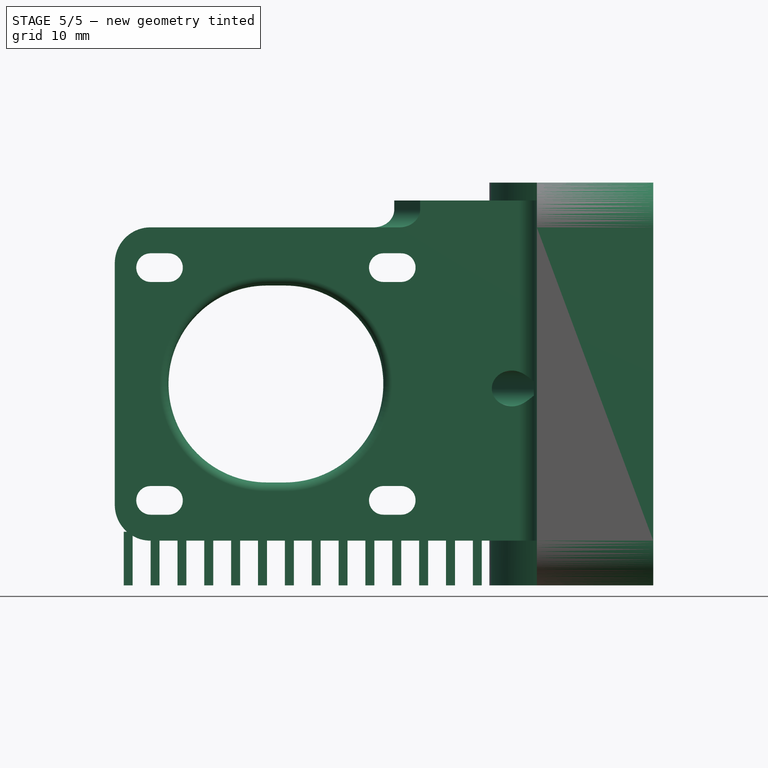
[diagram: stage 5 of 5 — front view after this stage's code; geometry added in this stage tinted green]
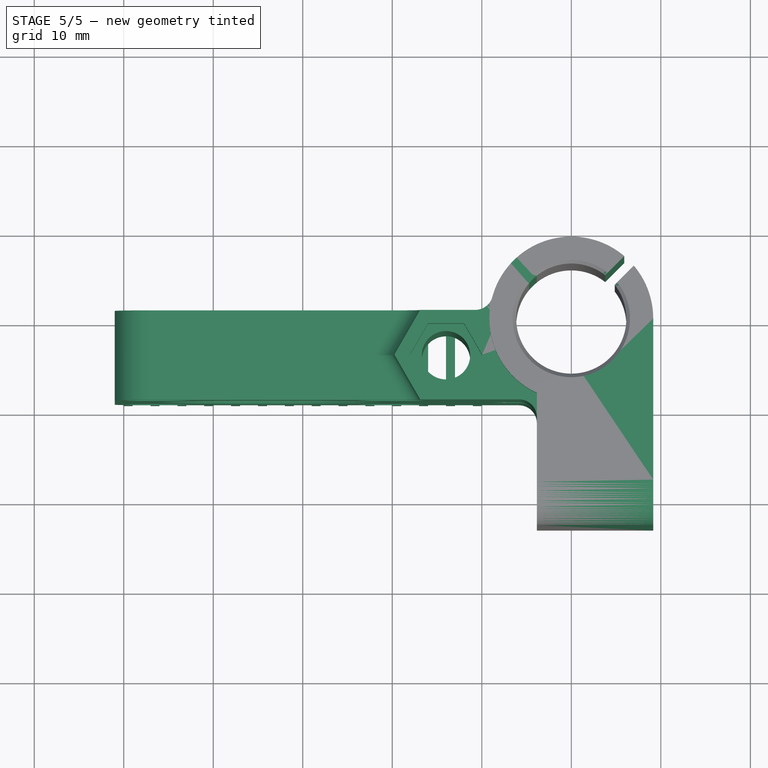
[diagram: stage 5 of 5 — top view after this stage's code; geometry added in this stage tinted green]
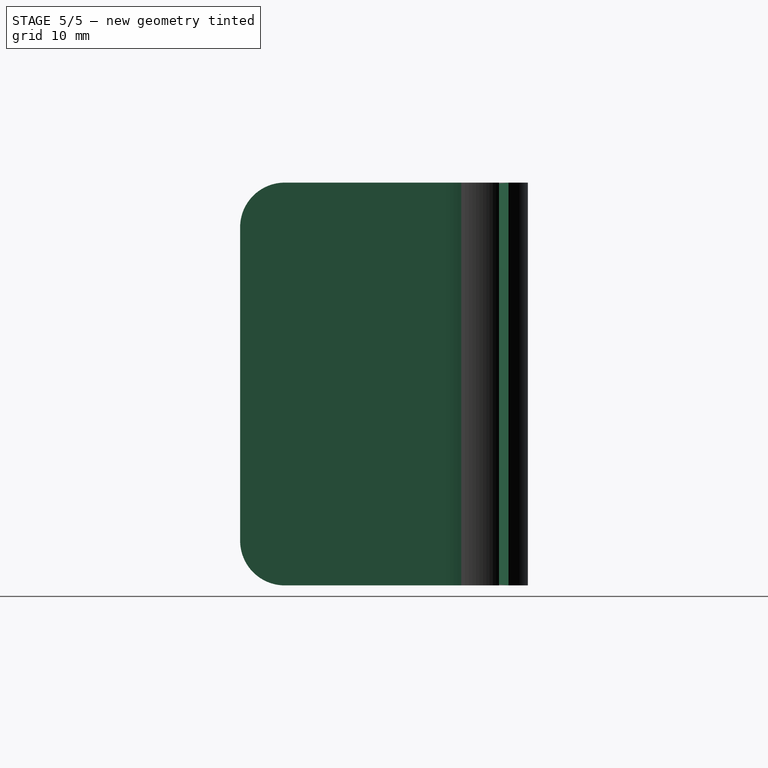
[diagram: stage 5 of 5 — right view after this stage's code; geometry added in this stage tinted green]
FEATURE [Part::FeaturePython] Array  label="soporte"  # Draft array (typed FeaturePython)
  Angle = 360
  ArrayType = 0
  Axis = (0,0,1)
  Base = -> Box
  Center = (0,0,0)
  Fuse = false
  IntervalAxis = (0,0,0)
  IntervalX = (3,0,0)
  IntervalY = (0,1,0)
  IntervalZ = (0,0,0)
  NumberPolar = 1
  NumberX = 14
  NumberY = 1
  NumberZ = 1
FEATURE [Part::MultiFuse] Fusion001
  Shapes = -> [Cut001,Array]
FEATURE [Part::Mirroring] Part__Mirroring  label="Fusion001 (Mirror #1)"
  Base = (0,0,0)
  Normal = (1,0,0)
  Source = -> Fusion001
FEATURE [Sketcher::SketchObject] Sketch015
  ExternalGeometry = -> [Part__Mirroring]
  Placement = pos=(-3.85,0,0) rot=(0.57735,-0.57735,-0.57735;2.0944rad)
  Support = -> Part__Mirroring [Face11]
  sketch-geometry (4):
    g0: LineSegment StartX=18.8 StartY=22 StartZ=0 EndX=14.8 EndY=22 EndZ=0
    g1: LineSegment StartX=14.8 StartY=22 StartZ=0 EndX=14.8 EndY=31.5 EndZ=0
    g2: LineSegment StartX=14.8 StartY=31.5 StartZ=0 EndX=18.8 EndY=31.5 EndZ=0
    g3: LineSegment StartX=18.8 StartY=31.5 StartZ=0 EndX=18.8 EndY=22 EndZ=0
  constraints (12):
    c: Coincident(g0,g1)
    c: Coincident(g1,g2)
    c: Coincident(g2,g3)
    c: Coincident(g3,g0)
    c: Horizontal(g0)
    c: Horizontal(g2)
    c: Vertical(g1)
    c: Vertical(g3)
    c: DistanceX(g0) = -4
    c: DistanceY(g2,g-3) = 2
    c: DistanceY(g-3,g0) = 2
    c: DistanceX(g1,g-3) = 1.1
FEATURE [PartDesign::Pocket] Pocket010
  Length = 11
  Sketch = -> Sketch015
  Type = 0
FEATURE [PartDesign::Chamfer] Chamfer
  Base = -> Pocket010 [Edge486,Edge487]
  Size = 1
FEATURE [PartDesign::Chamfer] Chamfer001
  Base = -> Chamfer [Edge34]
  Size = 1
FEATURE [PartDesign::Chamfer] Chamfer002
  Base = -> Chamfer001 [Edge106,Edge108,Edge117,Edge119]
  Size = 0.4
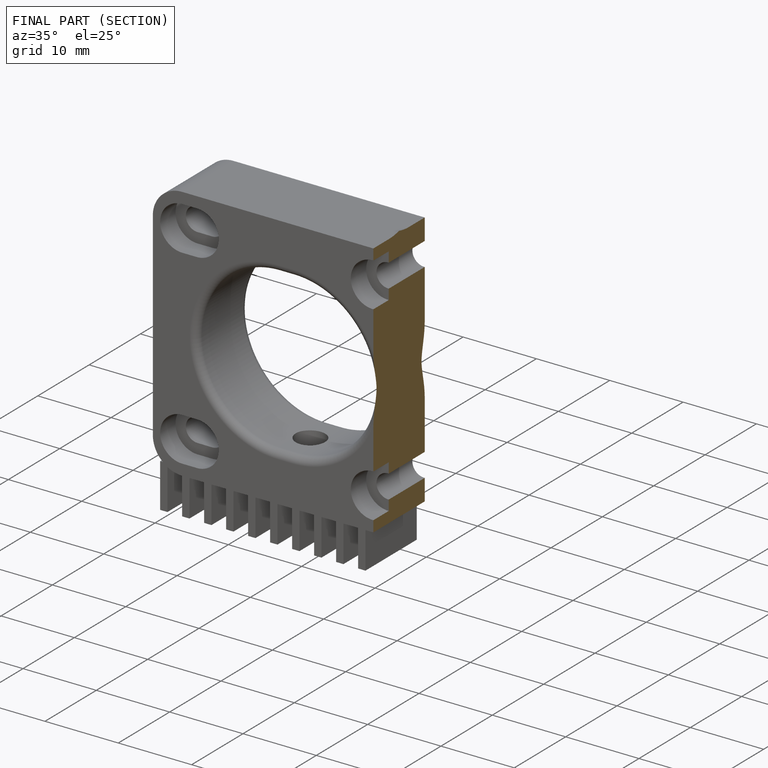
[diagram: finished part — half-section view (interior)]
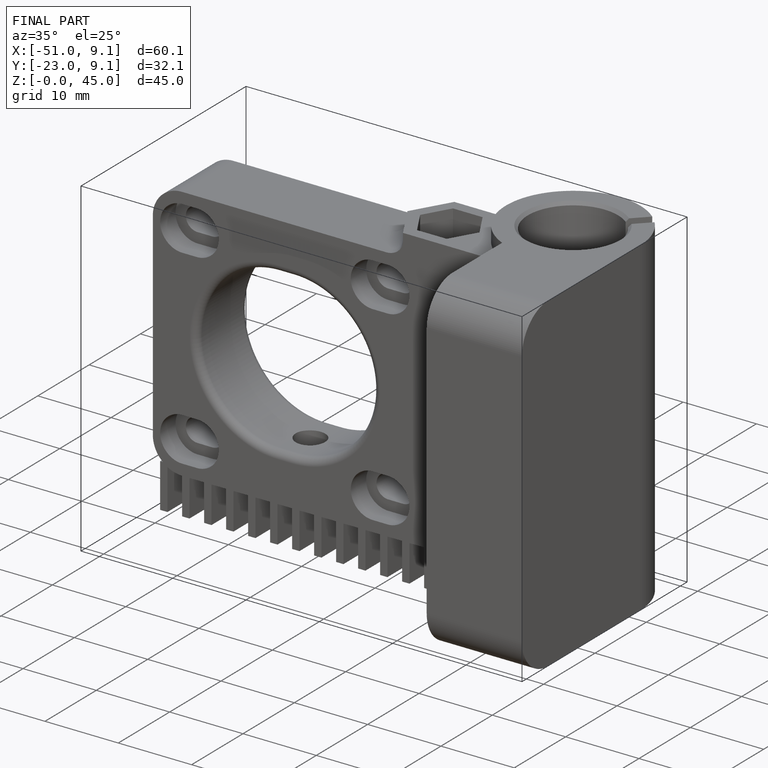
[diagram: finished part — iso view with bounding-box wireframe]
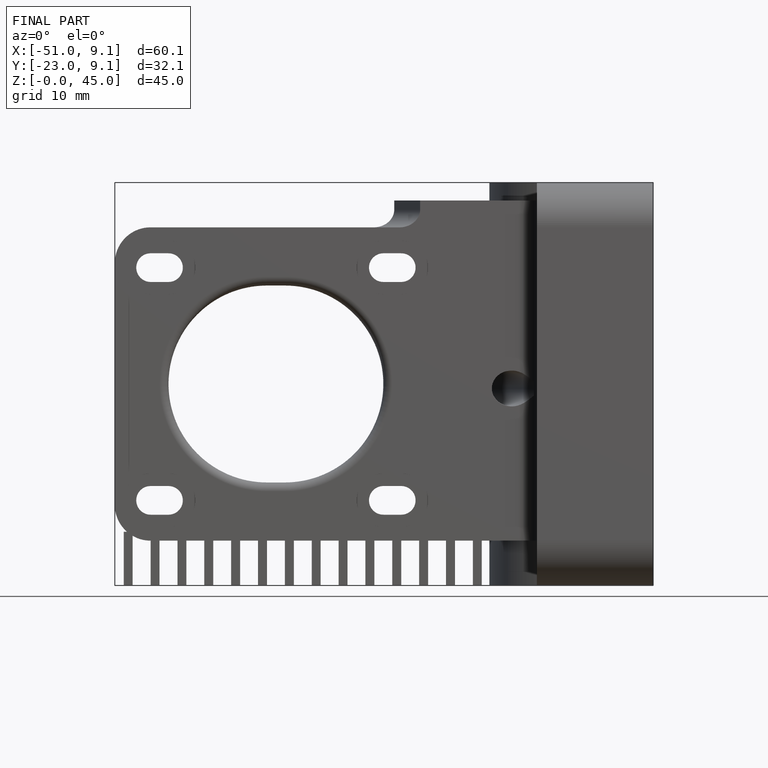
[diagram: finished part — front view with bounding-box wireframe]
